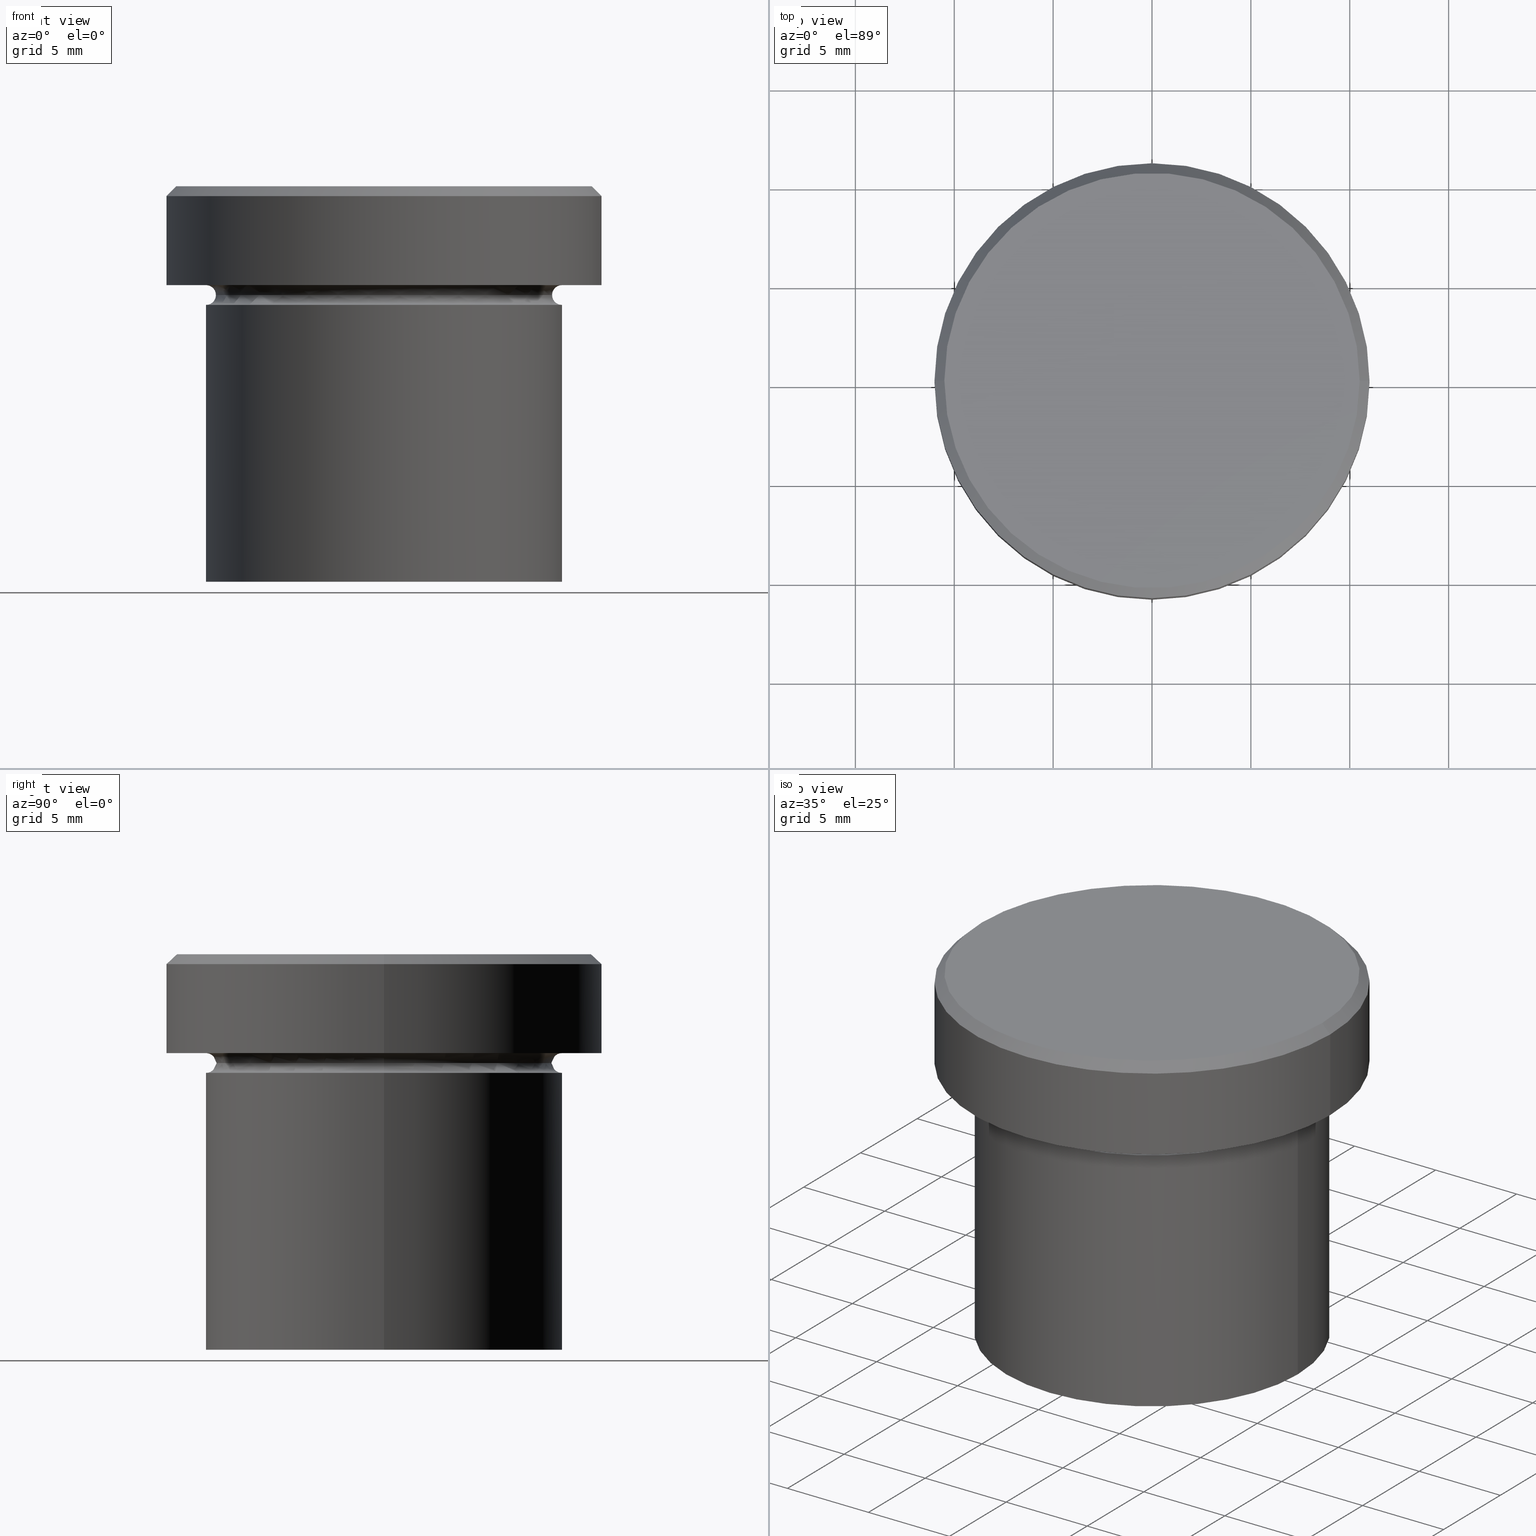
[diagram: canonical four-view strip — front | top / right | iso, engineering-drawing reading convention]
A machine part, canonical four-view strip (front | top / right | iso — engineering-drawing reading convention). The complete STEP part file that produces these views, byte-faithful:
ISO-10303-21;
HEADER;
FILE_DESCRIPTION (( 'STEP AP203' ),
    '1' );
FILE_NAME ('035f.STEP',
    '2024-01-02T22:02:45',
    ( '' ),
    ( '' ),
    'SwSTEP 2.0',
    'SolidWorks 2019',
    '' );
FILE_SCHEMA (( 'CONFIG_CONTROL_DESIGN' ));
ENDSEC;

DATA;
#1 = ORIENTED_EDGE ( 'NONE', *, *, #91, .F. ) ;
#2 = ORIENTED_EDGE ( 'NONE', *, *, #72, .T. ) ;
#3 = ORIENTED_EDGE ( 'NONE', *, *, #164, .F. ) ;
#4 = APPROVAL ( #292, 'NEUR�EN�' ) ;
#5 = EDGE_LOOP ( 'NONE', ( #206, #109, #58, #276 ) ) ;
#6 = ORIENTED_EDGE ( 'NONE', *, *, #333, .T. ) ;
#7 = EDGE_CURVE ( 'NONE', #271, #386, #212, .T. ) ;
#8 =( NAMED_UNIT ( * ) SI_UNIT ( $, .STERADIAN. ) SOLID_ANGLE_UNIT ( ) );
#9 = PRODUCT ( '035f', '035f', '', ( #193 ) ) ;
#10 = DIRECTION ( 'NONE',  ( -1.000000000000000000, 0.000000000000000000, 0.000000000000000000 ) ) ;
#11 = AXIS2_PLACEMENT_3D ( 'NONE', #167, #329, #229 ) ;
#12 = DIRECTION ( 'NONE',  ( -1.000000000000000000, 0.000000000000000000, 0.000000000000000000 ) ) ;
#13 = CC_DESIGN_DATE_AND_TIME_ASSIGNMENT ( #142, #199, ( #218 ) ) ;
#14 = DIRECTION ( 'NONE',  ( -1.000000000000000000, 0.000000000000000000, 0.000000000000000000 ) ) ;
#15 =( GEOMETRIC_REPRESENTATION_CONTEXT ( 3 ) GLOBAL_UNCERTAINTY_ASSIGNED_CONTEXT ( ( #159 ) ) GLOBAL_UNIT_ASSIGNED_CONTEXT ( ( #166, #383, #8 ) ) REPRESENTATION_CONTEXT ( 'NONE', 'WORKASPACE' ) );
#16 = AXIS2_PLACEMENT_3D ( 'NONE', #228, #52, #140 ) ;
#17 = PERSON_AND_ORGANIZATION_ROLE ( 'classification_officer' ) ;
#18 = EDGE_CURVE ( 'NONE', #240, #274, #226, .T. ) ;
#19 = FACE_BOUND ( 'NONE', #309, .T. ) ;
#20 = DATE_AND_TIME ( #262, #281 ) ;
#21 = VERTEX_POINT ( 'NONE', #186 ) ;
#22 = DIRECTION ( 'NONE',  ( 1.000000000000000000, 0.000000000000000000, 0.000000000000000000 ) ) ;
#23 = DIRECTION ( 'NONE',  ( -0.000000000000000000, -0.000000000000000000, 1.000000000000000000 ) ) ;
#24 = ADVANCED_FACE ( 'NONE', ( #163 ), #360, .F. ) ;
#25 = AXIS2_PLACEMENT_3D ( 'NONE', #372, #337, #254 ) ;
#26 = CARTESIAN_POINT ( 'NONE',  ( 9.000000000000000000, 1.102182119232617714E-15, -5.500000000000000000 ) ) ;
#27 = EDGE_LOOP ( 'NONE', ( #145, #238, #231, #123 ) ) ;
#28 = LOCAL_TIME ( 23, 2, 45.00000000000000000, #362 ) ;
#29 = DIRECTION ( 'NONE',  ( -0.000000000000000000, -0.000000000000000000, 1.000000000000000000 ) ) ;
#30 = ORIENTED_EDGE ( 'NONE', *, *, #7, .F. ) ;
#31 = ORIENTED_EDGE ( 'NONE', *, *, #91, .T. ) ;
#32 = CIRCLE ( 'NONE', #76, 9.000000000000000000 ) ;
#33 = CARTESIAN_POINT ( 'NONE',  ( 0.000000000000000000, 0.000000000000000000, -5.500000000000000000 ) ) ;
#34 = ORIENTED_EDGE ( 'NONE', *, *, #171, .T. ) ;
#35 = EDGE_CURVE ( 'NONE', #311, #155, #180, .T. ) ;
#36 = LINE ( 'NONE', #121, #290 ) ;
#37 = VERTEX_POINT ( 'NONE', #396 ) ;
#38 = DIRECTION ( 'NONE',  ( 1.000000000000000000, 0.000000000000000000, 0.000000000000000000 ) ) ;
#39 = DIRECTION ( 'NONE',  ( 1.000000000000000000, 0.000000000000000000, 0.000000000000000000 ) ) ;
#40 = AXIS2_PLACEMENT_3D ( 'NONE', #261, #263, #22 ) ;
#41 = DIRECTION ( 'NONE',  ( 1.000000000000000000, 0.000000000000000000, 0.000000000000000000 ) ) ;
#42 = CYLINDRICAL_SURFACE ( 'NONE', #339, 9.000000000000000000 ) ;
#43 = AXIS2_PLACEMENT_3D ( 'NONE', #280, #285, #287 ) ;
#44 = EDGE_CURVE ( 'NONE', #151, #334, #253, .T. ) ;
#45 = CARTESIAN_POINT ( 'NONE',  ( 0.000000000000000000, 0.000000000000000000, -5.000000000000000000 ) ) ;
#46 = CARTESIAN_POINT ( 'NONE',  ( 11.00000000000000000, 0.000000000000000000, 0.000000000000000000 ) ) ;
#47 = CARTESIAN_POINT ( 'NONE',  ( 0.000000000000000000, 0.000000000000000000, -5.000000000000000000 ) ) ;
#48 = CARTESIAN_POINT ( 'NONE',  ( 0.000000000000000000, 0.000000000000000000, 0.000000000000000000 ) ) ;
#49 = AXIS2_PLACEMENT_3D ( 'NONE', #192, #79, #107 ) ;
#50 = DIRECTION ( 'NONE',  ( 0.000000000000000000, -0.000000000000000000, 1.000000000000000000 ) ) ;
#51 = ORIENTED_EDGE ( 'NONE', *, *, #97, .F. ) ;
#52 = DIRECTION ( 'NONE',  ( -0.000000000000000000, -0.000000000000000000, 1.000000000000000000 ) ) ;
#53 = COORDINATED_UNIVERSAL_TIME_OFFSET ( 1, 0, .AHEAD. ) ;
#54 = AXIS2_PLACEMENT_3D ( 'NONE', #96, #356, #392 ) ;
#55 = APPROVAL_DATE_TIME ( #20, #4 ) ;
#56 = ORIENTED_EDGE ( 'NONE', *, *, #72, .F. ) ;
#57 = CALENDAR_DATE ( 2024, 2, 1 ) ;
#58 = ORIENTED_EDGE ( 'NONE', *, *, #257, .T. ) ;
#59 = ORIENTED_EDGE ( 'NONE', *, *, #171, .F. ) ;
#60 = AXIS2_PLACEMENT_3D ( 'NONE', #33, #29, #156 ) ;
#61 = CARTESIAN_POINT ( 'NONE',  ( 0.000000000000000000, 0.000000000000000000, -0.5000000000000004441 ) ) ;
#62 = EDGE_CURVE ( 'NONE', #37, #271, #209, .T. ) ;
#63 = DIRECTION ( 'NONE',  ( 1.000000000000000000, 0.000000000000000000, 0.000000000000000000 ) ) ;
#64 = ORIENTED_EDGE ( 'NONE', *, *, #35, .T. ) ;
#65 = CIRCLE ( 'NONE', #380, 11.00000000000000000 ) ;
#66 = AXIS2_PLACEMENT_3D ( 'NONE', #369, #293, #144 ) ;
#67 = DIRECTION ( 'NONE',  ( 0.000000000000000000, 0.000000000000000000, -1.000000000000000000 ) ) ;
#68 = CC_DESIGN_PERSON_AND_ORGANIZATION_ASSIGNMENT ( #99, #217, ( #9 ) ) ;
#69 = CARTESIAN_POINT ( 'NONE',  ( 0.000000000000000000, 0.000000000000000000, -5.500000000000000000 ) ) ;
#70 = AXIS2_PLACEMENT_3D ( 'NONE', #114, #84, #343 ) ;
#71 = CALENDAR_DATE ( 2024, 2, 1 ) ;
#72 = EDGE_CURVE ( 'NONE', #274, #240, #394, .T. ) ;
#73 = DIRECTION ( 'NONE',  ( -0.000000000000000000, -0.000000000000000000, 1.000000000000000000 ) ) ;
#74 = LOCAL_TIME ( 23, 2, 45.00000000000000000, #201 ) ;
#75 = DIRECTION ( 'NONE',  ( 1.000000000000000000, 0.000000000000000000, 0.000000000000000000 ) ) ;
#76 = AXIS2_PLACEMENT_3D ( 'NONE', #299, #23, #146 ) ;
#77 = CARTESIAN_POINT ( 'NONE',  ( -8.499999999999998224, 1.071565949253933927E-15, -5.500000000000000000 ) ) ;
#78 = ORIENTED_EDGE ( 'NONE', *, *, #176, .T. ) ;
#79 = DIRECTION ( 'NONE',  ( 0.000000000000000000, 0.000000000000000000, -1.000000000000000000 ) ) ;
#80 = ADVANCED_FACE ( 'NONE', ( #160 ), #388, .T. ) ;
#81 = CARTESIAN_POINT ( 'NONE',  ( 0.000000000000000000, 0.000000000000000000, -5.500000000000000000 ) ) ;
#82 = PERSON ( 'NEUR�EN�', 'NEUR�EN�', 'NEUR�EN�', ('NEUR�EN�'), ('NEUR�EN�'), ('NEUR�EN�') ) ;
#83 = AXIS2_PLACEMENT_3D ( 'NONE', #357, #67, #104 ) ;
#84 = DIRECTION ( 'NONE',  ( -0.000000000000000000, -0.000000000000000000, 1.000000000000000000 ) ) ;
#85 = MANIFOLD_SOLID_BREP ( 'Zkosen�1', #249 ) ;
#86 = ADVANCED_FACE ( 'NONE', ( #134 ), #172, .T. ) ;
#87 = ORIENTED_EDGE ( 'NONE', *, *, #374, .T. ) ;
#88 = CIRCLE ( 'NONE', #310, 11.00000000000000000 ) ;
#89 = CARTESIAN_POINT ( 'NONE',  ( 0.000000000000000000, 0.000000000000000000, -0.5000000000000004441 ) ) ;
#90 = CC_DESIGN_APPROVAL ( #355, ( #131 ) ) ;
#91 = EDGE_CURVE ( 'NONE', #311, #295, #291, .T. ) ;
#92 = DIRECTION ( 'NONE',  ( -1.000000000000000000, 0.000000000000000000, -0.000000000000000000 ) ) ;
#93 = APPLICATION_CONTEXT ( 'configuration controlled 3d designs of mechanical parts and assemblies' ) ;
#94 = ORIENTED_EDGE ( 'NONE', *, *, #136, .F. ) ;
#95 = AXIS2_PLACEMENT_3D ( 'NONE', #81, #367, #330 ) ;
#96 = CARTESIAN_POINT ( 'NONE',  ( 0.000000000000000000, 0.000000000000000000, 0.000000000000000000 ) ) ;
#97 = EDGE_CURVE ( 'NONE', #311, #240, #401, .T. ) ;
#98 = DIRECTION ( 'NONE',  ( -0.000000000000000000, -0.000000000000000000, 1.000000000000000000 ) ) ;
#99 = PERSON_AND_ORGANIZATION ( #82, #113 ) ;
#100 = APPLICATION_PROTOCOL_DEFINITION ( 'international standard', 'config_control_design', 1994, #248 ) ;
#101 = AXIS2_PLACEMENT_3D ( 'NONE', #119, #237, #10 ) ;
#102 = PLANE ( 'NONE',  #49 ) ;
#103 = EDGE_LOOP ( 'NONE', ( #179, #227, #344, #3 ) ) ;
#104 = DIRECTION ( 'NONE',  ( -1.000000000000000000, 0.000000000000000000, 0.000000000000000000 ) ) ;
#105 = AXIS2_PLACEMENT_3D ( 'NONE', #241, #204, #38 ) ;
#106 = ORIENTED_EDGE ( 'NONE', *, *, #18, .F. ) ;
#107 = DIRECTION ( 'NONE',  ( -1.000000000000000000, 0.000000000000000000, -0.000000000000000000 ) ) ;
#108 = CALENDAR_DATE ( 2024, 2, 1 ) ;
#109 = ORIENTED_EDGE ( 'NONE', *, *, #342, .T. ) ;
#110 = FACE_OUTER_BOUND ( 'NONE', #178, .T. ) ;
#111 = PLANE ( 'NONE',  #154 ) ;
#112 = DATE_AND_TIME ( #108, #304 ) ;
#113 = ORGANIZATION ( 'NEUR�EN�', 'NEUR�EN�', '' ) ;
#114 = CARTESIAN_POINT ( 'NONE',  ( 0.000000000000000000, 0.000000000000000000, -5.000000000000000000 ) ) ;
#115 = PERSON_AND_ORGANIZATION_ROLE ( 'creator' ) ;
#116 = ORIENTED_EDGE ( 'NONE', *, *, #208, .F. ) ;
#117 = CONICAL_SURFACE ( 'NONE', #101, 10.49999999999999822, 0.7853981633974482790 ) ;
#118 = CC_DESIGN_PERSON_AND_ORGANIZATION_ASSIGNMENT ( #177, #148, ( #305 ) ) ;
#119 = CARTESIAN_POINT ( 'NONE',  ( 0.000000000000000000, 0.000000000000000000, 0.000000000000000000 ) ) ;
#120 = ORIENTED_EDGE ( 'NONE', *, *, #387, .F. ) ;
#121 = CARTESIAN_POINT ( 'NONE',  ( -11.00000000000000000, 1.347111479062088405E-15, 0.000000000000000000 ) ) ;
#122 = DIRECTION ( 'NONE',  ( 0.000000000000000000, 0.000000000000000000, -1.000000000000000000 ) ) ;
#123 = ORIENTED_EDGE ( 'NONE', *, *, #257, .F. ) ;
#124 = CIRCLE ( 'NONE', #283, 10.49999999999999822 ) ;
#125 = ADVANCED_FACE ( 'NONE', ( #405 ), #111, .T. ) ;
#126 = ORIENTED_EDGE ( 'NONE', *, *, #359, .F. ) ;
#127 = LOCAL_TIME ( 23, 2, 45.00000000000000000, #233 ) ;
#128 = CARTESIAN_POINT ( 'NONE',  ( 11.00000000000000000, 0.000000000000000000, -5.000000000000000000 ) ) ;
#129 = ORIENTED_EDGE ( 'NONE', *, *, #97, .T. ) ;
#130 = APPROVAL_PERSON_ORGANIZATION ( #270, #355, #267 ) ;
#131 = SECURITY_CLASSIFICATION ( '', '', #302 ) ;
#132 = ADVANCED_FACE ( 'NONE', ( #275 ), #306, .T. ) ;
#133 = AXIS2_PLACEMENT_3D ( 'NONE', #47, #323, #14 ) ;
#134 = FACE_OUTER_BOUND ( 'NONE', #27, .T. ) ;
#135 = DIRECTION ( 'NONE',  ( 0.000000000000000000, 0.000000000000000000, 1.000000000000000000 ) ) ;
#136 = EDGE_CURVE ( 'NONE', #295, #311, #264, .T. ) ;
#137 = FACE_OUTER_BOUND ( 'NONE', #230, .T. ) ;
#138 = PERSON_AND_ORGANIZATION ( #82, #113 ) ;
#139 = VECTOR ( 'NONE', #319, 1000.000000000000000 ) ;
#140 = DIRECTION ( 'NONE',  ( 1.000000000000000000, 0.000000000000000000, 0.000000000000000000 ) ) ;
#141 = DIRECTION ( 'NONE',  ( -1.000000000000000000, 1.224646799147353454E-16, 0.000000000000000000 ) ) ;
#142 = DATE_AND_TIME ( #57, #74 ) ;
#143 = EDGE_CURVE ( 'NONE', #334, #346, #88, .T. ) ;
#144 = DIRECTION ( 'NONE',  ( 0.000000000000000000, 0.000000000000000000, -1.000000000000000000 ) ) ;
#145 = ORIENTED_EDGE ( 'NONE', *, *, #213, .T. ) ;
#146 = DIRECTION ( 'NONE',  ( 1.000000000000000000, 0.000000000000000000, 0.000000000000000000 ) ) ;
#147 = DIRECTION ( 'NONE',  ( -1.000000000000000000, -1.224646799147353454E-16, 0.000000000000000000 ) ) ;
#148 = PERSON_AND_ORGANIZATION_ROLE ( 'design_supplier' ) ;
#149 = AXIS2_PLACEMENT_3D ( 'NONE', #48, #135, #75 ) ;
#150 = EDGE_CURVE ( 'NONE', #21, #334, #36, .T. ) ;
#151 = VERTEX_POINT ( 'NONE', #211 ) ;
#152 = CARTESIAN_POINT ( 'NONE',  ( 0.000000000000000000, 0.000000000000000000, -6.000000000000000000 ) ) ;
#153 = ORIENTED_EDGE ( 'NONE', *, *, #359, .T. ) ;
#154 = AXIS2_PLACEMENT_3D ( 'NONE', #373, #338, #92 ) ;
#155 = VERTEX_POINT ( 'NONE', #345 ) ;
#156 = DIRECTION ( 'NONE',  ( 1.000000000000000000, 0.000000000000000000, 0.000000000000000000 ) ) ;
#157 = VECTOR ( 'NONE', #279, 1000.000000000000000 ) ;
#158 = CARTESIAN_POINT ( 'NONE',  ( 0.000000000000000000, 0.000000000000000000, -20.00000000000000000 ) ) ;
#159 = UNCERTAINTY_MEASURE_WITH_UNIT (LENGTH_MEASURE( 1.000000000000000082E-05 ), #166, 'distance_accuracy_value', 'NONE');
#160 = FACE_OUTER_BOUND ( 'NONE', #5, .T. ) ;
#161 = CC_DESIGN_PERSON_AND_ORGANIZATION_ASSIGNMENT ( #297, #17, ( #131 ) ) ;
#162 = VECTOR ( 'NONE', #282, 1000.000000000000114 ) ;
#163 = FACE_OUTER_BOUND ( 'NONE', #409, .T. ) ;
#164 = EDGE_CURVE ( 'NONE', #346, #334, #65, .T. ) ;
#165 = DIRECTION ( 'NONE',  ( 0.000000000000000000, 0.000000000000000000, -1.000000000000000000 ) ) ;
#166 =( LENGTH_UNIT ( ) NAMED_UNIT ( * ) SI_UNIT ( .MILLI., .METRE. ) );
#167 = CARTESIAN_POINT ( 'NONE',  ( 0.000000000000000000, 0.000000000000000000, 0.000000000000000000 ) ) ;
#168 = AXIS2_PLACEMENT_3D ( 'NONE', #296, #402, #335 ) ;
#169 = CARTESIAN_POINT ( 'NONE',  ( 8.499999999999998224, 0.000000000000000000, -5.500000000000000000 ) ) ;
#170 = APPROVAL_ROLE ( '' ) ;
#171 = EDGE_CURVE ( 'NONE', #155, #386, #243, .T. ) ;
#172 = CYLINDRICAL_SURFACE ( 'NONE', #11, 11.00000000000000000 ) ;
#173 = CARTESIAN_POINT ( 'NONE',  ( -11.00000000000000000, 1.347111479062088405E-15, -0.5000000000000004441 ) ) ;
#174 = DIRECTION ( 'NONE',  ( -1.224646799147353207E-16, 1.000000000000000000, 0.000000000000000000 ) ) ;
#175 = AXIS2_PLACEMENT_3D ( 'NONE', #331, #370, #198 ) ;
#176 = EDGE_CURVE ( 'NONE', #348, #151, #124, .T. ) ;
#177 = PERSON_AND_ORGANIZATION ( #82, #113 ) ;
#178 = EDGE_LOOP ( 'NONE', ( #94, #153, #87, #236 ) ) ;
#179 = ORIENTED_EDGE ( 'NONE', *, *, #307, .F. ) ;
#180 = CIRCLE ( 'NONE', #43, 0.5000000000000004441 ) ;
#181 = CC_DESIGN_DATE_AND_TIME_ASSIGNMENT ( #112, #234, ( #131 ) ) ;
#182 = EDGE_LOOP ( 'NONE', ( #126, #1, #64, #34 ) ) ;
#183 = ORIENTED_EDGE ( 'NONE', *, *, #374, .F. ) ;
#184 = VECTOR ( 'NONE', #194, 1000.000000000000114 ) ;
#185 = APPROVAL ( #324, 'NEUR�EN�' ) ;
#186 = CARTESIAN_POINT ( 'NONE',  ( -11.00000000000000000, 1.347111479062088405E-15, -5.000000000000000000 ) ) ;
#187 = AXIS2_PLACEMENT_3D ( 'NONE', #45, #98, #12 ) ;
#188 = DIRECTION ( 'NONE',  ( -0.000000000000000000, -0.000000000000000000, 1.000000000000000000 ) ) ;
#189 = PRODUCT_RELATED_PRODUCT_CATEGORY ( 'detail', '', ( #9 ) ) ;
#190 = DATE_AND_TIME ( #71, #28 ) ;
#191 = APPROVAL_PERSON_ORGANIZATION ( #358, #185, #221 ) ;
#192 = CARTESIAN_POINT ( 'NONE',  ( 0.000000000000000000, 11.00000000000000000, -5.000000000000000000 ) ) ;
#193 = MECHANICAL_CONTEXT ( 'NONE', #93, 'mechanical' ) ;
#194 = DIRECTION ( 'NONE',  ( 0.7071067811865474617, 8.659560562354932858E-17, -0.7071067811865474617 ) ) ;
#195 = AXIS2_PLACEMENT_3D ( 'NONE', #403, #197, #141 ) ;
#196 = CARTESIAN_POINT ( 'NONE',  ( 10.49999999999999822, 1.285879139104720633E-15, 0.000000000000000000 ) ) ;
#197 = DIRECTION ( 'NONE',  ( 1.224646799147353207E-16, 1.000000000000000000, 0.000000000000000000 ) ) ;
#198 = DIRECTION ( 'NONE',  ( 1.000000000000000000, 0.000000000000000000, 0.000000000000000000 ) ) ;
#199 = DATE_TIME_ROLE ( 'creation_date' ) ;
#200 = FACE_OUTER_BOUND ( 'NONE', #182, .T. ) ;
#201 = COORDINATED_UNIVERSAL_TIME_OFFSET ( 1, 0, .AHEAD. ) ;
#202 = APPLICATION_PROTOCOL_DEFINITION ( 'international standard', 'config_control_design', 1994, #93 ) ;
#203 = SHAPE_DEFINITION_REPRESENTATION ( #352, #245 ) ;
#204 = DIRECTION ( 'NONE',  ( -0.000000000000000000, -0.000000000000000000, 1.000000000000000000 ) ) ;
#205 = CC_DESIGN_APPROVAL ( #4, ( #305 ) ) ;
#206 = ORIENTED_EDGE ( 'NONE', *, *, #150, .F. ) ;
#207 = ORIENTED_EDGE ( 'NONE', *, *, #307, .T. ) ;
#208 = EDGE_CURVE ( 'NONE', #271, #37, #250, .T. ) ;
#209 = CIRCLE ( 'NONE', #366, 9.000000000000000000 ) ;
#210 = DIRECTION ( 'NONE',  ( -0.000000000000000000, -0.000000000000000000, 1.000000000000000000 ) ) ;
#211 = CARTESIAN_POINT ( 'NONE',  ( -10.49999999999999822, 0.000000000000000000, 0.000000000000000000 ) ) ;
#212 = LINE ( 'NONE', #326, #139 ) ;
#213 = EDGE_CURVE ( 'NONE', #269, #21, #321, .T. ) ;
#214 = AXIS2_PLACEMENT_3D ( 'NONE', #152, #351, #63 ) ;
#215 = CARTESIAN_POINT ( 'NONE',  ( 9.000000000000000000, 1.102182119232617714E-15, -4.999999999999999112 ) ) ;
#216 = CARTESIAN_POINT ( 'NONE',  ( 0.000000000000000000, 0.000000000000000000, -20.00000000000000000 ) ) ;
#217 = PERSON_AND_ORGANIZATION_ROLE ( 'design_owner' ) ;
#219 = DESIGN_CONTEXT ( 'detailed design', #248, 'design' ) ;
#218 = PRODUCT_DEFINITION ( 'NEZN�M�', '', #305, #219 ) ;
#220 = DIRECTION ( 'NONE',  ( -0.000000000000000000, -0.000000000000000000, 1.000000000000000000 ) ) ;
#221 = APPROVAL_ROLE ( '' ) ;
#222 = ADVANCED_FACE ( 'NONE', ( #272 ), #117, .T. ) ;
#223 = CARTESIAN_POINT ( 'NONE',  ( 0.000000000000000000, 0.000000000000000000, 0.000000000000000000 ) ) ;
#224 = ORIENTED_EDGE ( 'NONE', *, *, #333, .F. ) ;
#225 = DIRECTION ( 'NONE',  ( 1.000000000000000000, 0.000000000000000000, 0.000000000000000000 ) ) ;
#226 = CIRCLE ( 'NONE', #133, 9.000000000000000000 ) ;
#227 = ORIENTED_EDGE ( 'NONE', *, *, #289, .F. ) ;
#228 = CARTESIAN_POINT ( 'NONE',  ( 0.000000000000000000, 0.000000000000000000, -5.500000000000000000 ) ) ;
#229 = DIRECTION ( 'NONE',  ( 1.000000000000000000, 0.000000000000000000, 0.000000000000000000 ) ) ;
#230 = EDGE_LOOP ( 'NONE', ( #51, #31, #6, #106 ) ) ;
#231 = ORIENTED_EDGE ( 'NONE', *, *, #143, .T. ) ;
#232 = CARTESIAN_POINT ( 'NONE',  ( -9.000000000000000000, 1.102182119232617714E-15, -6.000000000000000000 ) ) ;
#233 = COORDINATED_UNIVERSAL_TIME_OFFSET ( 1, 0, .AHEAD. ) ;
#234 = DATE_TIME_ROLE ( 'classification_date' ) ;
#235 = CIRCLE ( 'NONE', #66, 0.5000000000000004441 ) ;
#236 = ORIENTED_EDGE ( 'NONE', *, *, #35, .F. ) ;
#237 = DIRECTION ( 'NONE',  ( 0.000000000000000000, 0.000000000000000000, -1.000000000000000000 ) ) ;
#238 = ORIENTED_EDGE ( 'NONE', *, *, #150, .T. ) ;
#239 = DIRECTION ( 'NONE',  ( -0.000000000000000000, -0.000000000000000000, 1.000000000000000000 ) ) ;
#240 = VERTEX_POINT ( 'NONE', #215 ) ;
#241 = CARTESIAN_POINT ( 'NONE',  ( 0.000000000000000000, 0.000000000000000000, 0.000000000000000000 ) ) ;
#242 = EDGE_LOOP ( 'NONE', ( #30, #277, #244, #183 ) ) ;
#243 = CIRCLE ( 'NONE', #214, 9.000000000000000000 ) ;
#244 = ORIENTED_EDGE ( 'NONE', *, *, #387, .T. ) ;
#245 = ADVANCED_BREP_SHAPE_REPRESENTATION ( '035f', ( #85, #149 ), #15 ) ;
#246 = CARTESIAN_POINT ( 'NONE',  ( -9.000000000000000000, 1.102182119232617714E-15, -20.00000000000000000 ) ) ;
#247 = CC_DESIGN_APPROVAL ( #185, ( #218 ) ) ;
#248 = APPLICATION_CONTEXT ( 'configuration controlled 3d designs of mechanical parts and assemblies' ) ;
#249 = CLOSED_SHELL ( 'NONE', ( #222, #24, #381, #132, #86, #125, #298, #80, #350, #252, #320, #368, #284 ) ) ;
#250 = CIRCLE ( 'NONE', #389, 9.000000000000000000 ) ;
#251 = CARTESIAN_POINT ( 'NONE',  ( -9.000000000000000000, 0.000000000000000000, -4.999999999999999112 ) ) ;
#252 = ADVANCED_FACE ( 'NONE', ( #318 ), #42, .T. ) ;
#253 = LINE ( 'NONE', #353, #162 ) ;
#254 = DIRECTION ( 'NONE',  ( 1.000000000000000000, 0.000000000000000000, 0.000000000000000000 ) ) ;
#255 = CONICAL_SURFACE ( 'NONE', #83, 10.49999999999999822, 0.7853981633974482790 ) ;
#256 = PERSON_AND_ORGANIZATION_ROLE ( 'creator' ) ;
#257 = EDGE_CURVE ( 'NONE', #269, #346, #325, .T. ) ;
#258 = CARTESIAN_POINT ( 'NONE',  ( 10.49999999999999822, 1.316495309083404420E-15, 0.000000000000000000 ) ) ;
#259 = APPROVAL_STATUS ( 'not_yet_approved' ) ;
#260 = EDGE_LOOP ( 'NONE', ( #301, #265, #59, #120 ) ) ;
#261 = CARTESIAN_POINT ( 'NONE',  ( 0.000000000000000000, 0.000000000000000000, 0.000000000000000000 ) ) ;
#262 = CALENDAR_DATE ( 2024, 2, 1 ) ;
#263 = DIRECTION ( 'NONE',  ( -0.000000000000000000, -0.000000000000000000, 1.000000000000000000 ) ) ;
#264 = CIRCLE ( 'NONE', #60, 8.499999999999998224 ) ;
#265 = ORIENTED_EDGE ( 'NONE', *, *, #7, .T. ) ;
#266 = FACE_OUTER_BOUND ( 'NONE', #349, .T. ) ;
#267 = APPROVAL_ROLE ( '' ) ;
#268 = CC_DESIGN_PERSON_AND_ORGANIZATION_ASSIGNMENT ( #400, #115, ( #305 ) ) ;
#269 = VERTEX_POINT ( 'NONE', #128 ) ;
#270 = PERSON_AND_ORGANIZATION ( #82, #113 ) ;
#271 = VERTEX_POINT ( 'NONE', #246 ) ;
#272 = FACE_OUTER_BOUND ( 'NONE', #314, .T. ) ;
#273 = TOROIDAL_SURFACE ( 'NONE', #95, 9.000000000000000000, 0.5000000000000000000 ) ;
#274 = VERTEX_POINT ( 'NONE', #251 ) ;
#275 = FACE_OUTER_BOUND ( 'NONE', #260, .T. ) ;
#276 = ORIENTED_EDGE ( 'NONE', *, *, #164, .T. ) ;
#277 = ORIENTED_EDGE ( 'NONE', *, *, #208, .T. ) ;
#278 = DIRECTION ( 'NONE',  ( 1.000000000000000000, 0.000000000000000000, 0.000000000000000000 ) ) ;
#279 = DIRECTION ( 'NONE',  ( -0.000000000000000000, -0.000000000000000000, 1.000000000000000000 ) ) ;
#280 = CARTESIAN_POINT ( 'NONE',  ( 9.000000000000000000, 0.000000000000000000, -5.500000000000000000 ) ) ;
#281 = LOCAL_TIME ( 23, 2, 45.00000000000000000, #294 ) ;
#282 = DIRECTION ( 'NONE',  ( -0.7071067811865474617, 0.000000000000000000, -0.7071067811865474617 ) ) ;
#283 = AXIS2_PLACEMENT_3D ( 'NONE', #315, #239, #39 ) ;
#284 = ADVANCED_FACE ( 'NONE', ( #385 ), #255, .T. ) ;
#285 = DIRECTION ( 'NONE',  ( 0.000000000000000000, -1.000000000000000000, 0.000000000000000000 ) ) ;
#286 = CARTESIAN_POINT ( 'NONE',  ( 11.00000000000000000, 0.000000000000000000, -0.5000000000000004441 ) ) ;
#287 = DIRECTION ( 'NONE',  ( 0.000000000000000000, 0.000000000000000000, -1.000000000000000000 ) ) ;
#288 = APPROVAL_DATE_TIME ( #190, #185 ) ;
#289 = EDGE_CURVE ( 'NONE', #151, #348, #375, .T. ) ;
#290 = VECTOR ( 'NONE', #210, 1000.000000000000000 ) ;
#291 = CIRCLE ( 'NONE', #175, 8.499999999999998224 ) ;
#292 = APPROVAL_STATUS ( 'not_yet_approved' ) ;
#293 = DIRECTION ( 'NONE',  ( -0.000000000000000000, -1.000000000000000000, -0.000000000000000000 ) ) ;
#294 = COORDINATED_UNIVERSAL_TIME_OFFSET ( 1, 0, .AHEAD. ) ;
#295 = VERTEX_POINT ( 'NONE', #77 ) ;
#296 = CARTESIAN_POINT ( 'NONE',  ( 0.000000000000000000, 0.000000000000000000, -5.000000000000000000 ) ) ;
#297 = PERSON_AND_ORGANIZATION ( #82, #113 ) ;
#298 = ADVANCED_FACE ( 'NONE', ( #328 ), #397, .T. ) ;
#299 = CARTESIAN_POINT ( 'NONE',  ( 0.000000000000000000, 0.000000000000000000, -6.000000000000000000 ) ) ;
#300 = AXIS2_PLACEMENT_3D ( 'NONE', #26, #174, #147 ) ;
#301 = ORIENTED_EDGE ( 'NONE', *, *, #62, .T. ) ;
#302 = SECURITY_CLASSIFICATION_LEVEL ( 'unclassified' ) ;
#303 = ORIENTED_EDGE ( 'NONE', *, *, #143, .F. ) ;
#304 = LOCAL_TIME ( 23, 2, 45.00000000000000000, #53 ) ;
#305 = PRODUCT_DEFINITION_FORMATION_WITH_SPECIFIED_SOURCE ( 'LIBOVOLN�', '', #9, .NOT_KNOWN. ) ;
#306 = CYLINDRICAL_SURFACE ( 'NONE', #105, 9.000000000000000000 ) ;
#307 = EDGE_CURVE ( 'NONE', #348, #346, #399, .T. ) ;
#308 = ORIENTED_EDGE ( 'NONE', *, *, #136, .T. ) ;
#309 = EDGE_LOOP ( 'NONE', ( #2, #398 ) ) ;
#310 = AXIS2_PLACEMENT_3D ( 'NONE', #89, #379, #278 ) ;
#311 = VERTEX_POINT ( 'NONE', #169 ) ;
#312 = EDGE_LOOP ( 'NONE', ( #371, #78 ) ) ;
#313 = DIRECTION ( 'NONE',  ( 1.000000000000000000, 0.000000000000000000, 0.000000000000000000 ) ) ;
#314 = EDGE_LOOP ( 'NONE', ( #341, #207, #303, #365 ) ) ;
#315 = CARTESIAN_POINT ( 'NONE',  ( 0.000000000000000000, 0.000000000000000000, 0.000000000000000000 ) ) ;
#316 = AXIS2_PLACEMENT_3D ( 'NONE', #223, #50, #225 ) ;
#317 = ORIENTED_EDGE ( 'NONE', *, *, #213, .F. ) ;
#318 = FACE_OUTER_BOUND ( 'NONE', #242, .T. ) ;
#319 = DIRECTION ( 'NONE',  ( -0.000000000000000000, -0.000000000000000000, 1.000000000000000000 ) ) ;
#320 = ADVANCED_FACE ( 'NONE', ( #200 ), #327, .F. ) ;
#321 = CIRCLE ( 'NONE', #70, 11.00000000000000000 ) ;
#322 = TOROIDAL_SURFACE ( 'NONE', #25, 9.000000000000000000, 0.5000000000000000000 ) ;
#323 = DIRECTION ( 'NONE',  ( -0.000000000000000000, -0.000000000000000000, 1.000000000000000000 ) ) ;
#324 = APPROVAL_STATUS ( 'not_yet_approved' ) ;
#325 = LINE ( 'NONE', #46, #157 ) ;
#326 = CARTESIAN_POINT ( 'NONE',  ( -9.000000000000000000, 1.102182119232617714E-15, 0.000000000000000000 ) ) ;
#327 = TOROIDAL_SURFACE ( 'NONE', #16, 9.000000000000000000, 0.5000000000000000000 ) ;
#328 = FACE_OUTER_BOUND ( 'NONE', #312, .T. ) ;
#329 = DIRECTION ( 'NONE',  ( -0.000000000000000000, -0.000000000000000000, 1.000000000000000000 ) ) ;
#330 = DIRECTION ( 'NONE',  ( -1.000000000000000000, 0.000000000000000000, 0.000000000000000000 ) ) ;
#331 = CARTESIAN_POINT ( 'NONE',  ( 0.000000000000000000, 0.000000000000000000, -5.500000000000000000 ) ) ;
#332 = APPROVAL_DATE_TIME ( #336, #355 ) ;
#333 = EDGE_CURVE ( 'NONE', #295, #274, #235, .T. ) ;
#334 = VERTEX_POINT ( 'NONE', #173 ) ;
#335 = DIRECTION ( 'NONE',  ( 1.000000000000000000, 0.000000000000000000, 0.000000000000000000 ) ) ;
#336 = DATE_AND_TIME ( #376, #127 ) ;
#337 = DIRECTION ( 'NONE',  ( -0.000000000000000000, -0.000000000000000000, 1.000000000000000000 ) ) ;
#338 = DIRECTION ( 'NONE',  ( 0.000000000000000000, 0.000000000000000000, -1.000000000000000000 ) ) ;
#339 = AXIS2_PLACEMENT_3D ( 'NONE', #390, #220, #361 ) ;
#340 = PERSON_AND_ORGANIZATION ( #82, #113 ) ;
#341 = ORIENTED_EDGE ( 'NONE', *, *, #176, .F. ) ;
#342 = EDGE_CURVE ( 'NONE', #21, #269, #354, .T. ) ;
#343 = DIRECTION ( 'NONE',  ( 1.000000000000000000, 0.000000000000000000, 0.000000000000000000 ) ) ;
#344 = ORIENTED_EDGE ( 'NONE', *, *, #44, .T. ) ;
#345 = CARTESIAN_POINT ( 'NONE',  ( 9.000000000000000000, 0.000000000000000000, -6.000000000000000000 ) ) ;
#346 = VERTEX_POINT ( 'NONE', #286 ) ;
#347 = AXIS2_PLACEMENT_3D ( 'NONE', #69, #165, #391 ) ;
#348 = VERTEX_POINT ( 'NONE', #258 ) ;
#349 = EDGE_LOOP ( 'NONE', ( #317, #382 ) ) ;
#350 = ADVANCED_FACE ( 'NONE', ( #19, #266 ), #102, .T. ) ;
#351 = DIRECTION ( 'NONE',  ( -0.000000000000000000, -0.000000000000000000, 1.000000000000000000 ) ) ;
#352 = PRODUCT_DEFINITION_SHAPE ( 'NONE', 'NONE',  #218 ) ;
#353 = CARTESIAN_POINT ( 'NONE',  ( -10.49999999999999822, 0.000000000000000000, 0.000000000000000000 ) ) ;
#354 = CIRCLE ( 'NONE', #168, 11.00000000000000000 ) ;
#355 = APPROVAL ( #259, 'NEUR�EN�' ) ;
#356 = DIRECTION ( 'NONE',  ( -0.000000000000000000, -0.000000000000000000, 1.000000000000000000 ) ) ;
#357 = CARTESIAN_POINT ( 'NONE',  ( 0.000000000000000000, 0.000000000000000000, 0.000000000000000000 ) ) ;
#358 = PERSON_AND_ORGANIZATION ( #82, #113 ) ;
#359 = EDGE_CURVE ( 'NONE', #295, #386, #408, .T. ) ;
#360 = TOROIDAL_SURFACE ( 'NONE', #347, 9.000000000000000000, 0.5000000000000000000 ) ;
#361 = DIRECTION ( 'NONE',  ( 1.000000000000000000, 0.000000000000000000, 0.000000000000000000 ) ) ;
#362 = COORDINATED_UNIVERSAL_TIME_OFFSET ( 1, 0, .AHEAD. ) ;
#363 = CARTESIAN_POINT ( 'NONE',  ( 9.000000000000000000, 0.000000000000000000, 0.000000000000000000 ) ) ;
#364 = APPROVAL_PERSON_ORGANIZATION ( #340, #4, #170 ) ;
#365 = ORIENTED_EDGE ( 'NONE', *, *, #44, .F. ) ;
#366 = AXIS2_PLACEMENT_3D ( 'NONE', #216, #188, #41 ) ;
#367 = DIRECTION ( 'NONE',  ( 0.000000000000000000, 0.000000000000000000, -1.000000000000000000 ) ) ;
#368 = ADVANCED_FACE ( 'NONE', ( #137 ), #273, .F. ) ;
#369 = CARTESIAN_POINT ( 'NONE',  ( -9.000000000000000000, 0.000000000000000000, -5.500000000000000000 ) ) ;
#370 = DIRECTION ( 'NONE',  ( -0.000000000000000000, -0.000000000000000000, 1.000000000000000000 ) ) ;
#371 = ORIENTED_EDGE ( 'NONE', *, *, #289, .T. ) ;
#372 = CARTESIAN_POINT ( 'NONE',  ( 0.000000000000000000, 0.000000000000000000, -5.500000000000000000 ) ) ;
#373 = CARTESIAN_POINT ( 'NONE',  ( 0.000000000000000000, 9.000000000000000000, -20.00000000000000000 ) ) ;
#374 = EDGE_CURVE ( 'NONE', #386, #155, #32, .T. ) ;
#375 = CIRCLE ( 'NONE', #40, 10.49999999999999822 ) ;
#376 = CALENDAR_DATE ( 2024, 2, 1 ) ;
#377 = DIRECTION ( 'NONE',  ( -0.000000000000000000, -0.000000000000000000, 1.000000000000000000 ) ) ;
#378 = ORIENTED_EDGE ( 'NONE', *, *, #62, .F. ) ;
#379 = DIRECTION ( 'NONE',  ( 0.000000000000000000, 0.000000000000000000, -1.000000000000000000 ) ) ;
#380 = AXIS2_PLACEMENT_3D ( 'NONE', #61, #122, #313 ) ;
#381 = ADVANCED_FACE ( 'NONE', ( #110 ), #322, .F. ) ;
#382 = ORIENTED_EDGE ( 'NONE', *, *, #342, .F. ) ;
#383 =( NAMED_UNIT ( * ) PLANE_ANGLE_UNIT ( ) SI_UNIT ( $, .RADIAN. ) );
#384 = EDGE_LOOP ( 'NONE', ( #378, #116 ) ) ;
#385 = FACE_OUTER_BOUND ( 'NONE', #103, .T. ) ;
#386 = VERTEX_POINT ( 'NONE', #232 ) ;
#387 = EDGE_CURVE ( 'NONE', #37, #155, #395, .T. ) ;
#388 = CYLINDRICAL_SURFACE ( 'NONE', #54, 11.00000000000000000 ) ;
#389 = AXIS2_PLACEMENT_3D ( 'NONE', #158, #377, #407 ) ;
#390 = CARTESIAN_POINT ( 'NONE',  ( 0.000000000000000000, 0.000000000000000000, 0.000000000000000000 ) ) ;
#391 = DIRECTION ( 'NONE',  ( -1.000000000000000000, 0.000000000000000000, 0.000000000000000000 ) ) ;
#392 = DIRECTION ( 'NONE',  ( 1.000000000000000000, 0.000000000000000000, 0.000000000000000000 ) ) ;
#393 = VECTOR ( 'NONE', #73, 1000.000000000000000 ) ;
#394 = CIRCLE ( 'NONE', #187, 9.000000000000000000 ) ;
#395 = LINE ( 'NONE', #363, #393 ) ;
#396 = CARTESIAN_POINT ( 'NONE',  ( 9.000000000000000000, 0.000000000000000000, -20.00000000000000000 ) ) ;
#397 = PLANE ( 'NONE',  #316 ) ;
#398 = ORIENTED_EDGE ( 'NONE', *, *, #18, .T. ) ;
#399 = LINE ( 'NONE', #196, #184 ) ;
#400 = PERSON_AND_ORGANIZATION ( #82, #113 ) ;
#401 = CIRCLE ( 'NONE', #300, 0.5000000000000004441 ) ;
#402 = DIRECTION ( 'NONE',  ( -0.000000000000000000, -0.000000000000000000, 1.000000000000000000 ) ) ;
#403 = CARTESIAN_POINT ( 'NONE',  ( -9.000000000000000000, 1.102182119232617714E-15, -5.500000000000000000 ) ) ;
#404 = CC_DESIGN_SECURITY_CLASSIFICATION ( #131, ( #305 ) ) ;
#405 = FACE_OUTER_BOUND ( 'NONE', #384, .T. ) ;
#406 = CC_DESIGN_PERSON_AND_ORGANIZATION_ASSIGNMENT ( #138, #256, ( #218 ) ) ;
#407 = DIRECTION ( 'NONE',  ( 1.000000000000000000, 0.000000000000000000, 0.000000000000000000 ) ) ;
#408 = CIRCLE ( 'NONE', #195, 0.5000000000000004441 ) ;
#409 = EDGE_LOOP ( 'NONE', ( #308, #129, #56, #224 ) ) ;
ENDSEC;
END-ISO-10303-21;
